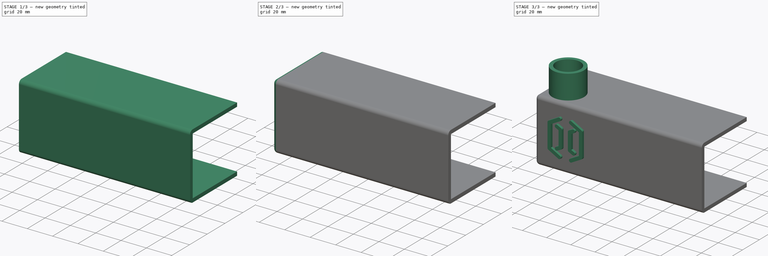
[diagram: build sequence overview — one tinted view per stage of 3, left to right]
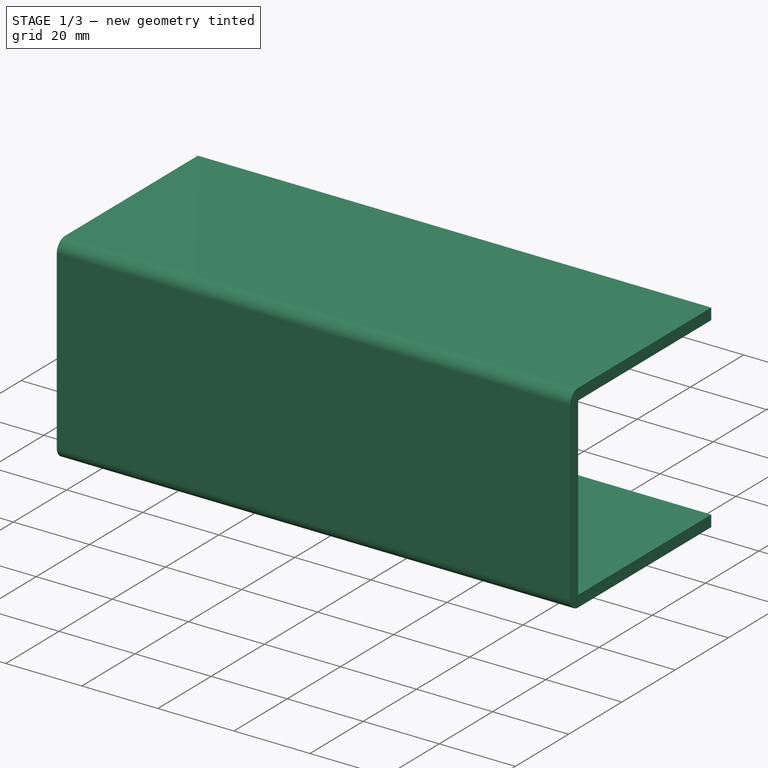
[diagram: stage 1 of 3 — iso view after this stage's code; geometry added in this stage tinted green]
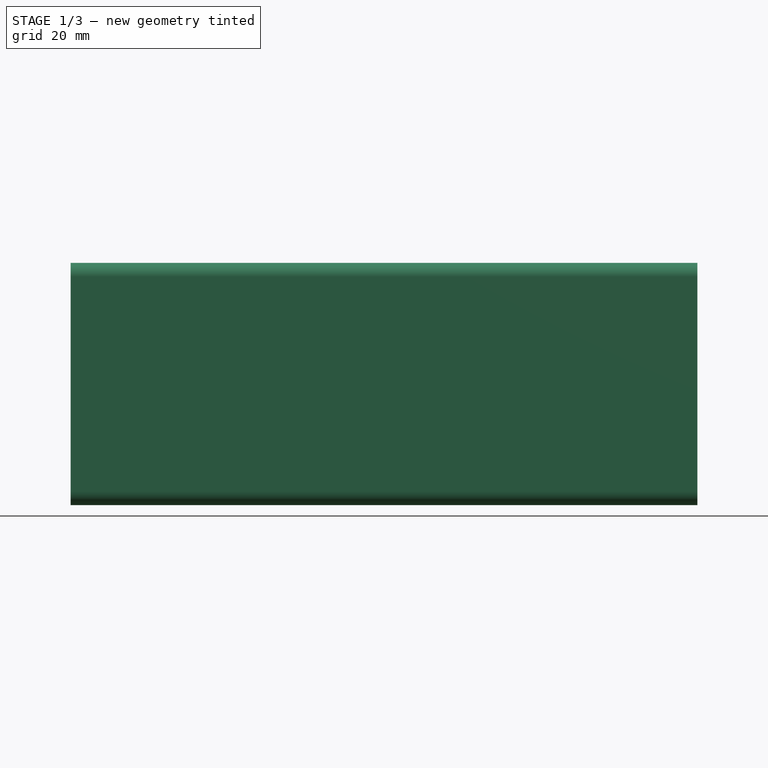
[diagram: stage 1 of 3 — front view after this stage's code; geometry added in this stage tinted green]
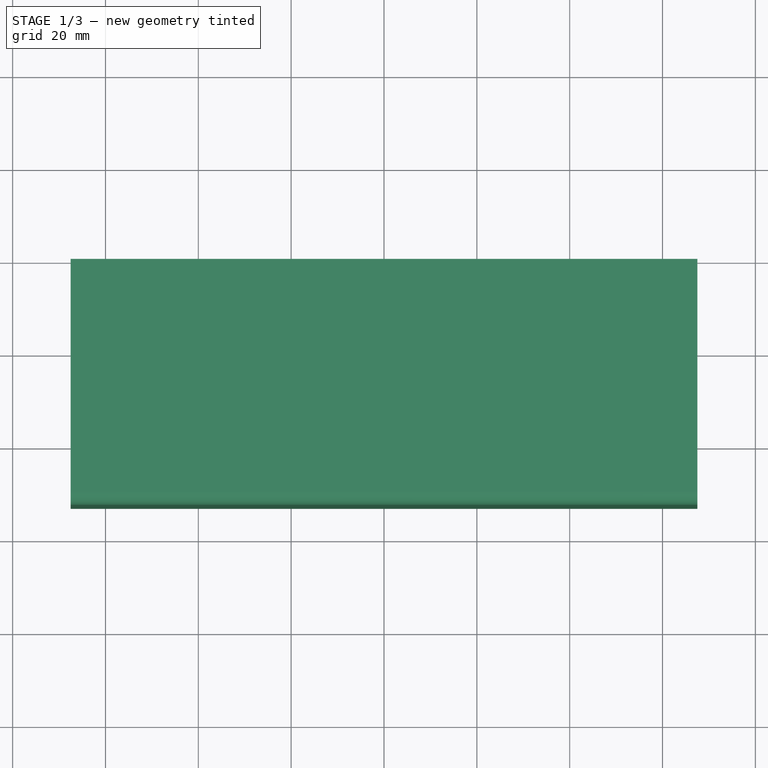
[diagram: stage 1 of 3 — top view after this stage's code; geometry added in this stage tinted green]
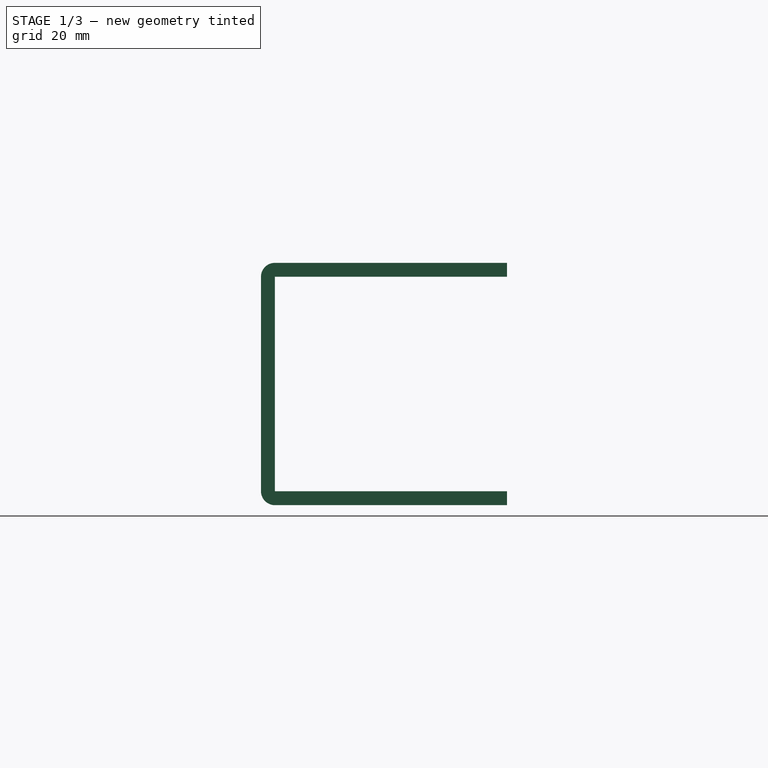
[diagram: stage 1 of 3 — right view after this stage's code; geometry added in this stage tinted green]
FCSTD DOCUMENT  (FreeCAD 1.1R38728 (Git))
Label: new version artillery sidewinder x2 front progile
License: All rights reserved
objects: Sketcher::SketchObject×4, PartDesign::Pad×4, PartDesign::Thickness×2, PartDesign::Body×2
note: 28 computed .brp shape members not serialized (recipe doc carries the construction recipe); baked Part::Feature solids carry a one-line shape summary decoded from their .brp

FEATURE [PartDesign::Body] Body  label="left section"
  AllowCompound = false
  Group = -> [Sketch,Pad,Thickness,Sketch001,Pad001,Sketch002,Pad002]
  Origin = -> Origin
  Tip = -> Pad002
FEATURE [Sketcher::SketchObject] Sketch003
  ArcFitTolerance = 1e-06
  AttachmentSupport = -> [XZ_Plane001]
  FullyConstrained = true
  MakeInternals = false
  MapMode = 5
  Placement = pos=(0,0,0) rot=(1,0,0;1.5708rad)
  expr: Constraints[8] = 405 / 3
  sketch-geometry (4):
    g0: LineSegment StartX=-67.5 StartY=23.1 StartZ=0 EndX=-67.5 EndY=-23.1 EndZ=0
    g1: LineSegment StartX=-67.5 StartY=-23.1 StartZ=0 EndX=67.5 EndY=-23.1 EndZ=0
    g2: LineSegment StartX=67.5 StartY=-23.1 StartZ=0 EndX=67.5 EndY=23.1 EndZ=0
    g3: LineSegment StartX=67.5 StartY=23.1 StartZ=0 EndX=-67.5 EndY=23.1 EndZ=0
  constraints (10):
    c: Coincident(g0,g1)
    c: Coincident(g1,g2)
    c: Coincident(g2,g3)
    c: Coincident(g3,g0)
    c: Vertical(g2)
    c: Horizontal(g1)
    c: Symmetric(g2,g0,g-2)
    c: Symmetric(g0,g0,g-1)
    c: DistanceX(g3,g3) = 135
    c: DistanceY(g0,g0) = 46.2
FEATURE [PartDesign::Pad] Pad003
  Direction = (0,-1,2e-16)
  Length = 50
  Length2 = 10
  Placement = pos=(0,0,0) rot=(1,0,0;1.5708rad)
  Profile = -> Sketch003
  ReferenceAxis = -> Sketch003 [N_Axis]
  Refine = true
  Suppressed = false
  Type = 0
FEATURE [PartDesign::Thickness] Thickness001
  Base = -> Pad003 [Face3,Face5,Face1]
  BaseFeature = -> Pad003
  Intersection = false
  Join = 0
  Mode = 0
  Refine = true
  SupportTransform = false
  Suppressed = false
  Value = 3
FEATURE [PartDesign::Body] Body001  label="mid section"
  AllowCompound = false
  Group = -> [Sketch003,Pad003,Thickness001]
  Origin = -> Origin001
  Tip = -> Thickness001
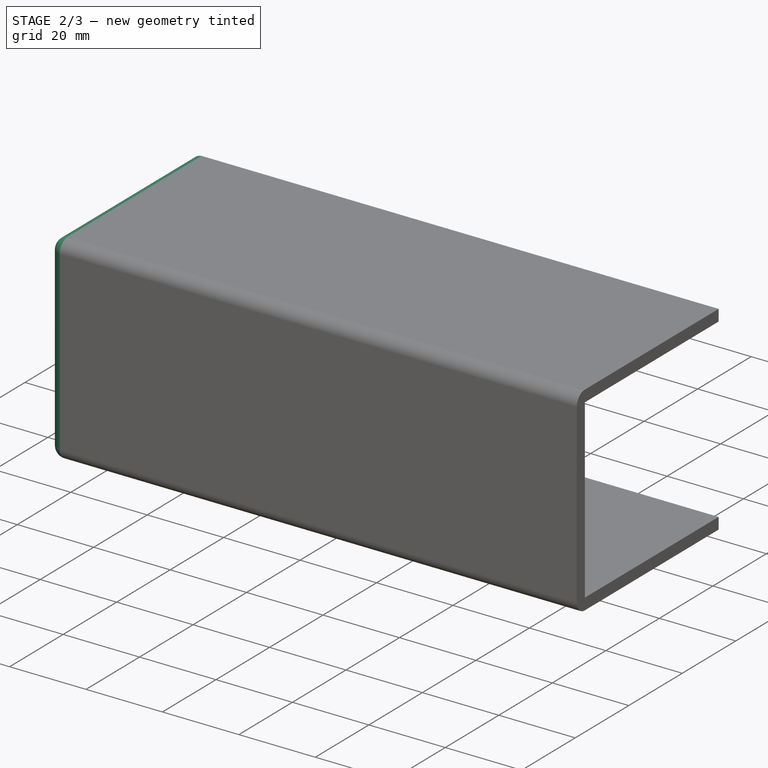
[diagram: stage 2 of 3 — iso view after this stage's code; geometry added in this stage tinted green]
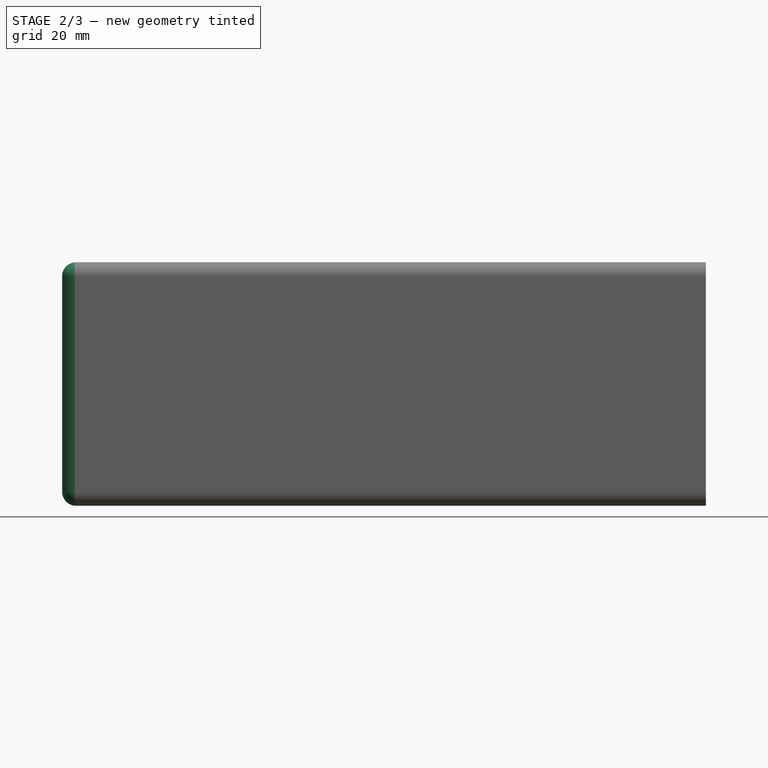
[diagram: stage 2 of 3 — front view after this stage's code; geometry added in this stage tinted green]
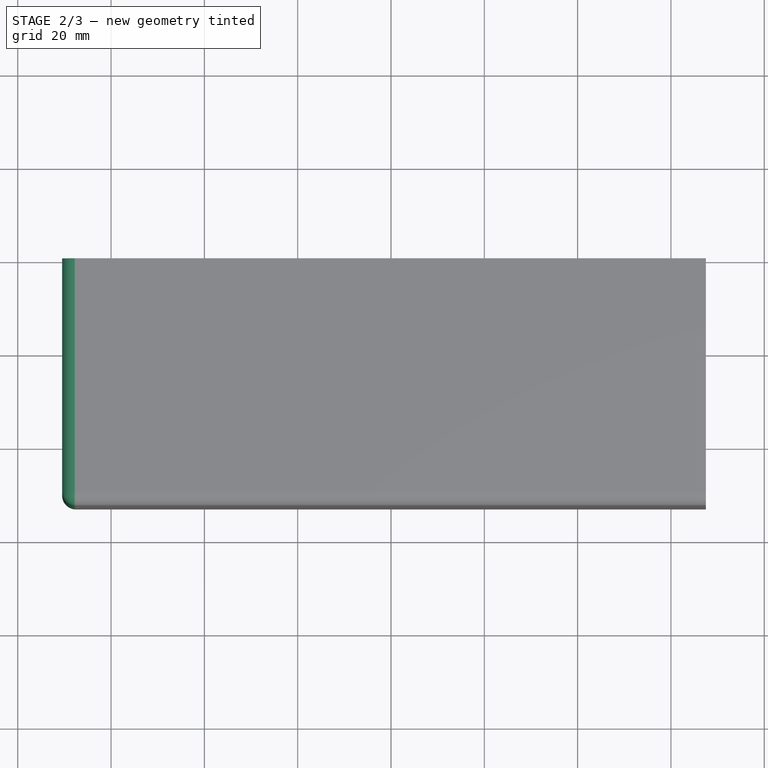
[diagram: stage 2 of 3 — top view after this stage's code; geometry added in this stage tinted green]
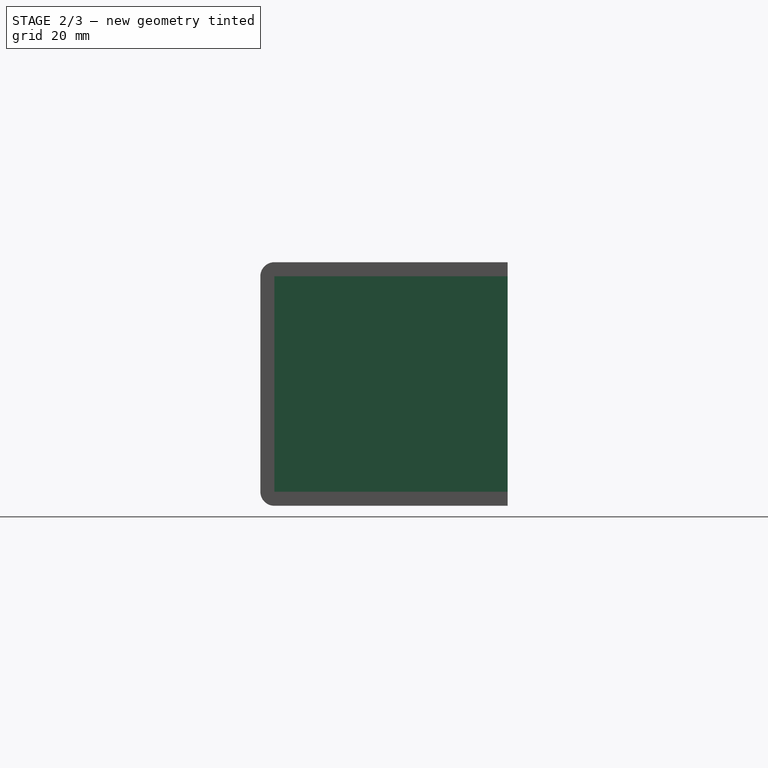
[diagram: stage 2 of 3 — right view after this stage's code; geometry added in this stage tinted green]
FEATURE [Sketcher::SketchObject] Sketch
  ArcFitTolerance = 1e-06
  AttachmentSupport = -> [XZ_Plane]
  FullyConstrained = true
  MakeInternals = false
  MapMode = 5
  Placement = pos=(0,0,0) rot=(1,0,0;1.5708rad)
  expr: Constraints[8] = 405 / 3
  sketch-geometry (4):
    g0: LineSegment StartX=-67.5 StartY=23.1 StartZ=0 EndX=-67.5 EndY=-23.1 EndZ=0
    g1: LineSegment StartX=-67.5 StartY=-23.1 StartZ=0 EndX=67.5 EndY=-23.1 EndZ=0
    g2: LineSegment StartX=67.5 StartY=-23.1 StartZ=0 EndX=67.5 EndY=23.1 EndZ=0
    g3: LineSegment StartX=67.5 StartY=23.1 StartZ=0 EndX=-67.5 EndY=23.1 EndZ=0
  constraints (10):
    c: Coincident(g0,g1)
    c: Coincident(g1,g2)
    c: Coincident(g2,g3)
    c: Coincident(g3,g0)
    c: Vertical(g2)
    c: Horizontal(g1)
    c: Symmetric(g2,g0,g-2)
    c: Symmetric(g0,g0,g-1)
    c: DistanceX(g3,g3) = 135
    c: DistanceY(g0,g0) = 46.2
FEATURE [PartDesign::Pad] Pad
  Direction = (0,-1,2e-16)
  Length = 50
  Length2 = 10
  Placement = pos=(0,0,0) rot=(1,0,0;1.5708rad)
  Profile = -> Sketch
  ReferenceAxis = -> Sketch [N_Axis]
  Refine = true
  Suppressed = false
  Type = 0
FEATURE [PartDesign::Thickness] Thickness
  Base = -> Pad [Face3,Face5]
  BaseFeature = -> Pad
  Intersection = false
  Join = 0
  Mode = 0
  Refine = true
  SupportTransform = false
  Suppressed = false
  Value = 3
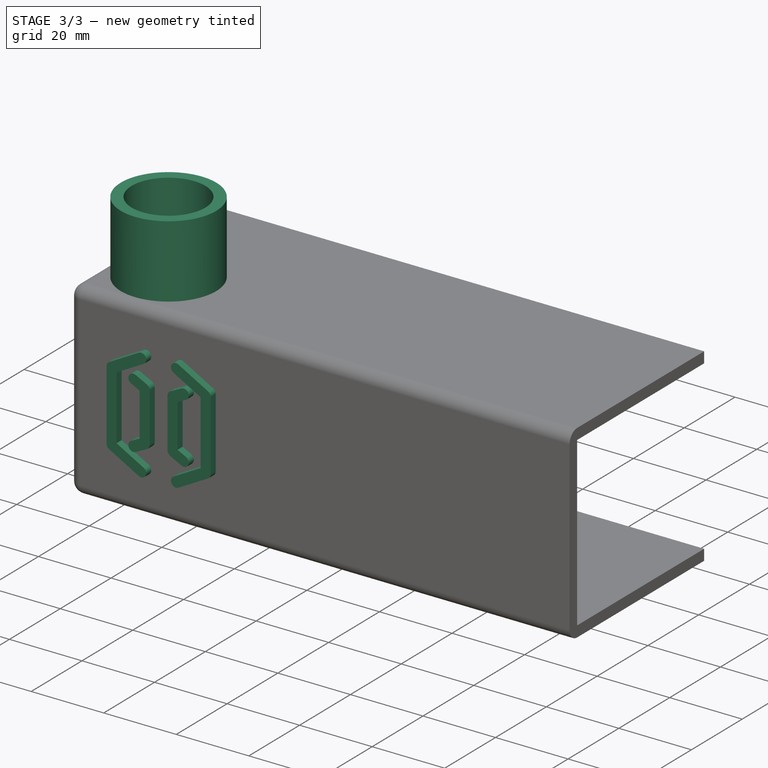
[diagram: stage 3 of 3 — iso view after this stage's code; geometry added in this stage tinted green]
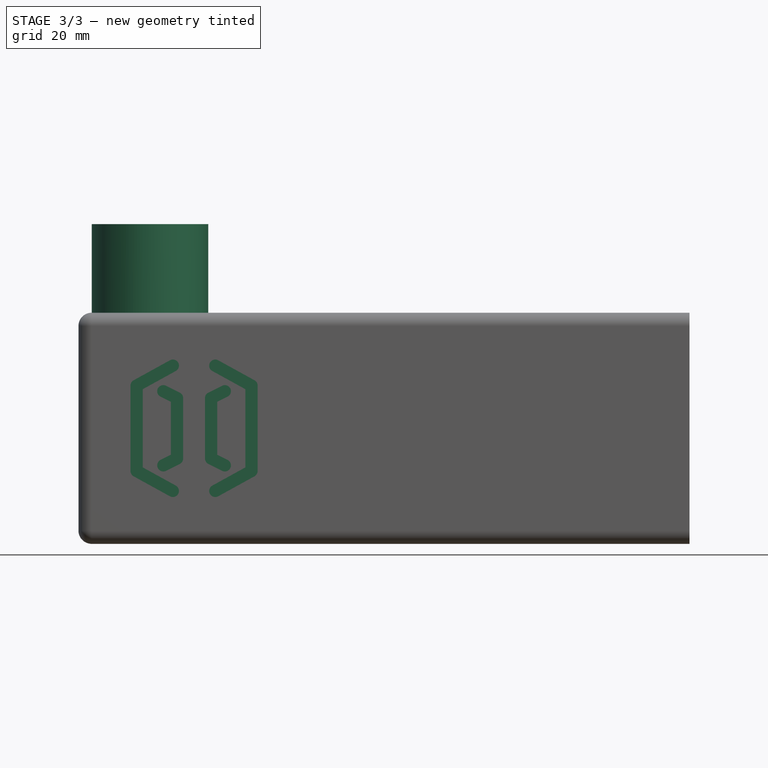
[diagram: stage 3 of 3 — front view after this stage's code; geometry added in this stage tinted green]
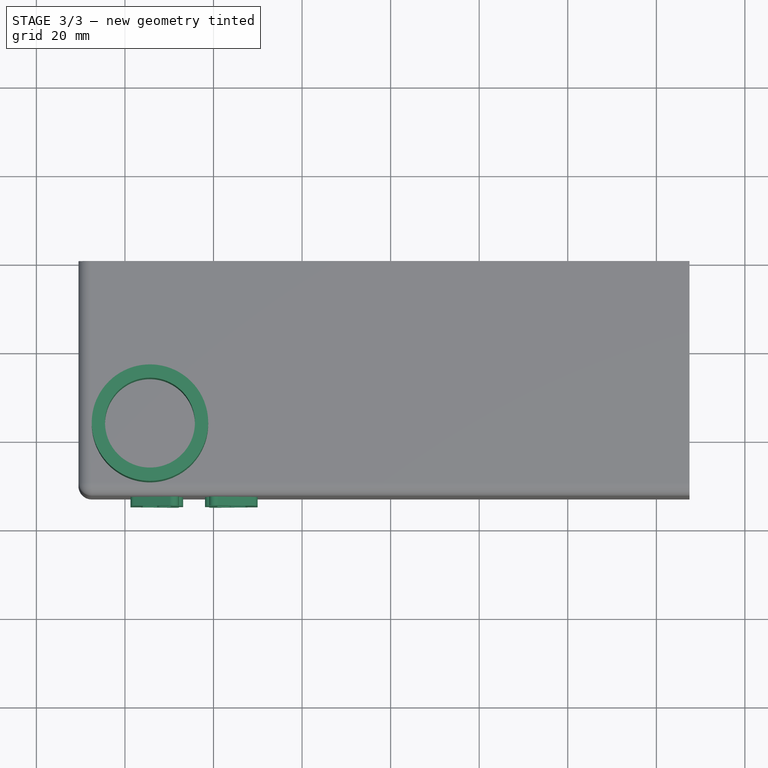
[diagram: stage 3 of 3 — top view after this stage's code; geometry added in this stage tinted green]
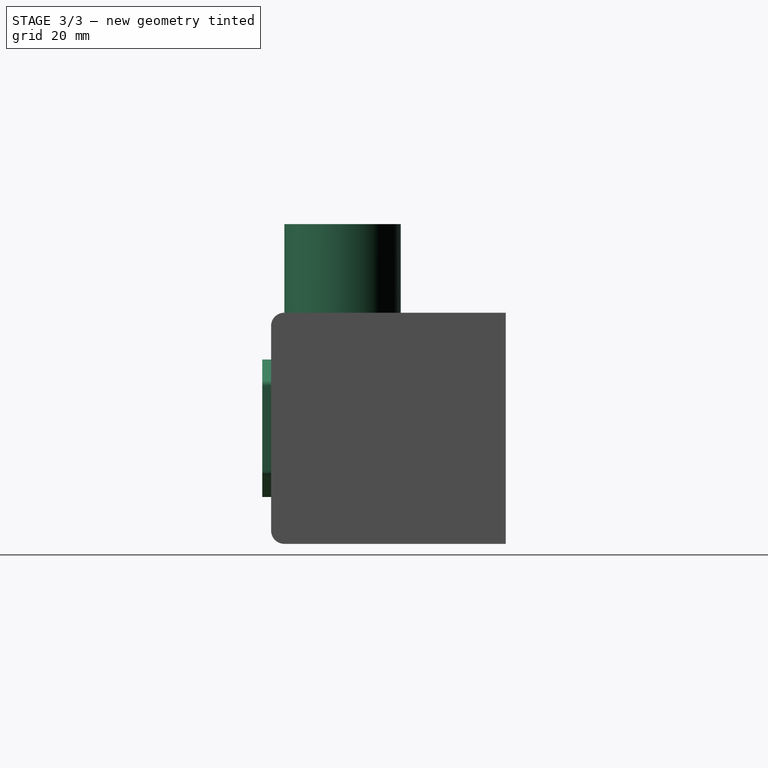
[diagram: stage 3 of 3 — right view after this stage's code; geometry added in this stage tinted green]
FEATURE [Sketcher::SketchObject] Sketch001
  ArcFitTolerance = 1e-06
  AttachmentSupport = -> [Thickness]
  ExternalGeometry = -> [Thickness]
  FullyConstrained = true
  MakeInternals = false
  MapMode = 5
  Placement = pos=(0,5.8e-15,26.1) rot=(0,0,1;0rad)
  sketch-geometry (2):
    g0: Circle CenterX=-54.35 CenterY=-36.85 CenterZ=0 NormalX=0 NormalY=0 NormalZ=1 AngleXU=0 Radius=13.15
    g1: Circle CenterX=-54.35 CenterY=-36.85 CenterZ=0 NormalX=0 NormalY=0 NormalZ=1 AngleXU=0 Radius=10.15
  constraints (5):
    c: Coincident(g1,g0)
    c: Tangent(g0,g-4)
    c: Tangent(g0,g-3)
    c: Distance(g1,g0) = 3
    c: Diameter(g1) = 20.3
FEATURE [PartDesign::Pad] Pad001
  BaseFeature = -> Thickness
  Direction = (0,0,1)
  Length = 20
  Length2 = 10
  Profile = -> Sketch001
  ReferenceAxis = -> Sketch001 [N_Axis]
  Refine = true
  Suppressed = false
  Type = 0
FEATURE [Sketcher::SketchObject] Sketch002
  ArcFitTolerance = 1e-06
  AttachmentSupport = -> [Pad001]
  ExternalGeometry = -> [Pad001]
  FullyConstrained = false
  MakeInternals = false
  MapMode = 5
  Placement = pos=(0,-53,0) rot=(1,0,0;1.5708rad)
  sketch-geometry (53):
    g0: LineSegment [constr] StartX=-44.3909 StartY=17.3794 StartZ=0 EndX=-44.3909 EndY=-12.7652 EndZ=0
    g1: LineSegment [constr] StartX=-49.1836 StartY=14.1455 StartZ=0 EndX=-57.3693 EndY=9.63609 EndZ=0
    g2: LineSegment [constr] StartX=-57.3693 StartY=9.63609 StartZ=0 EndX=-57.3693 EndY=-9.63609 EndZ=0
    g3: LineSegment [constr] StartX=-49.1836 StartY=-14.1455 StartZ=0 EndX=-57.3693 EndY=-9.63609 EndZ=0
    g4: LineSegment [constr] StartX=-48.2358 StartY=6.82149 StartZ=0 EndX=-48.2358 EndY=-6.82149 EndZ=0
    g5: LineSegment [constr] StartX=-48.2358 StartY=6.82149 StartZ=0 EndX=-51.3377 EndY=8.37247 EndZ=0
    g6: LineSegment [constr] StartX=-48.2358 StartY=-6.82149 StartZ=0 EndX=-51.3377 EndY=-8.37247 EndZ=0
    g7: ArcOfCircle CenterX=-51.3377 CenterY=-8.37247 CenterZ=0 NormalX=0 NormalY=0 NormalZ=-1 AngleXU=2.67795 Radius=1.37865 StartAngle=1.5708 EndAngle=4.71239
    g8: LineSegment StartX=-49.6144 StartY=-5.96944 StartZ=0 EndX=-51.9543 EndY=-7.13937 EndZ=0
    g9: LineSegment StartX=-49.6144 StartY=5.96944 StartZ=0 EndX=-49.6144 EndY=-5.96944 EndZ=0
    g10: LineSegment StartX=-49.6144 StartY=5.96944 StartZ=0 EndX=-51.9543 EndY=7.13937 EndZ=0
    g11: ArcOfCircle CenterX=-51.3377 CenterY=8.37247 CenterZ=0 NormalX=0 NormalY=0 NormalZ=-1 AngleXU=-2.67795 Radius=1.37865 StartAngle=1.5708 EndAngle=4.71239
    g12: LineSegment StartX=-47.6192 StartY=8.05459 StartZ=0 EndX=-50.7212 EndY=9.60557 EndZ=0
    g13: ArcOfCircle CenterX=-48.2358 CenterY=6.82149 CenterZ=0 NormalX=0 NormalY=0 NormalZ=-1 AngleXU=0.463647 Radius=1.37865 StartAngle=1.5708 EndAngle=2.67795
    g14: LineSegment StartX=-46.8571 StartY=6.82149 StartZ=0 EndX=-46.8571 EndY=-6.82149 EndZ=0
    g15: ArcOfCircle CenterX=-48.2358 CenterY=-6.82149 CenterZ=0 NormalX=0 NormalY=0 NormalZ=-1 AngleXU=1.5708 Radius=1.37865 StartAngle=1.5708 EndAngle=2.67795
    g16: LineSegment StartX=-47.6192 StartY=-8.05459 StartZ=0 EndX=-50.7212 EndY=-9.60557 EndZ=0
    g17: ArcOfCircle CenterX=-49.1836 CenterY=-14.1455 CenterZ=0 NormalX=0 NormalY=0 NormalZ=-1 AngleXU=0.503529 Radius=1.37865 StartAngle=1.5708 EndAngle=4.71239
    g18: LineSegment StartX=-49.8488 StartY=-15.3531 StartZ=0 EndX=-58.0345 EndY=-10.8436 EndZ=0
    g19: ArcOfCircle CenterX=-57.3693 CenterY=-9.63609 CenterZ=0 NormalX=0 NormalY=0 NormalZ=-1 AngleXU=-2.63806 Radius=1.37865 StartAngle=1.5708 EndAngle=2.63806
    g20: LineSegment StartX=-58.7479 StartY=9.63609 StartZ=0 EndX=-58.7479 EndY=-9.63609 EndZ=0
    g21: ArcOfCircle CenterX=-57.3693 CenterY=9.63609 CenterZ=0 NormalX=0 NormalY=0 NormalZ=-1 AngleXU=-1.5708 Radius=1.37865 StartAngle=1.5708 EndAngle=2.63806
    g22: LineSegment StartX=-49.8488 StartY=15.3531 StartZ=0 EndX=-58.0345 EndY=10.8436 EndZ=0
    g23: ArcOfCircle CenterX=-49.1836 CenterY=14.1455 CenterZ=0 NormalX=0 NormalY=0 NormalZ=-1 AngleXU=-0.503529 Radius=1.37865 StartAngle=1.5708 EndAngle=4.71239
    g24: LineSegment StartX=-48.5184 StartY=12.938 StartZ=0 EndX=-55.9907 EndY=8.82157 EndZ=0
    g25: LineSegment StartX=-55.9907 StartY=8.82157 StartZ=0 EndX=-55.9907 EndY=-8.82157 EndZ=0
    g26: LineSegment StartX=-48.5184 StartY=-12.938 StartZ=0 EndX=-55.9907 EndY=-8.82157 EndZ=0
    g27: LineSegment [constr] StartX=-39.5981 StartY=14.1455 StartZ=0 EndX=-31.4124 EndY=9.63609 EndZ=0
    g28: LineSegment [constr] StartX=-31.4124 StartY=9.63609 StartZ=0 EndX=-31.4124 EndY=-9.63609 EndZ=0
    g29: LineSegment [constr] StartX=-39.5981 StartY=-14.1455 StartZ=0 EndX=-31.4124 EndY=-9.63609 EndZ=0
    g30: LineSegment [constr] StartX=-40.546 StartY=6.82149 StartZ=0 EndX=-40.546 EndY=-6.82149 EndZ=0
    g31: LineSegment [constr] StartX=-40.546 StartY=6.82149 StartZ=0 EndX=-37.444 EndY=8.37247 EndZ=0
    g32: LineSegment [constr] StartX=-40.546 StartY=-6.82149 StartZ=0 EndX=-37.444 EndY=-8.37247 EndZ=0
    g33: ArcOfCircle CenterX=-37.444 CenterY=-8.37247 CenterZ=0 NormalX=0 NormalY=0 NormalZ=-1 AngleXU=2.67795 Radius=1.37865 StartAngle=5.63968 EndAngle=8.78128
    g34: LineSegment StartX=-39.1673 StartY=-5.96944 StartZ=0 EndX=-36.8275 EndY=-7.13937 EndZ=0
    g35: LineSegment StartX=-39.1673 StartY=5.96944 StartZ=0 EndX=-39.1673 EndY=-5.96944 EndZ=0
    g36: LineSegment StartX=-39.1673 StartY=5.96944 StartZ=0 EndX=-36.8275 EndY=7.13937 EndZ=0
    g37: ArcOfCircle CenterX=-37.444 CenterY=8.37247 CenterZ=0 NormalX=0 NormalY=0 NormalZ=-1 AngleXU=-2.67795 Radius=1.37865 StartAngle=3.78509 EndAngle=6.92669
    g38: LineSegment StartX=-41.1625 StartY=8.05459 StartZ=0 EndX=-38.0606 EndY=9.60557 EndZ=0
    g39: ArcOfCircle CenterX=-40.546 CenterY=6.82149 CenterZ=0 NormalX=0 NormalY=0 NormalZ=-1 AngleXU=0.463647 Radius=1.37865 StartAngle=5.81954 EndAngle=6.92669
    g40: LineSegment StartX=-41.9246 StartY=6.82149 StartZ=0 EndX=-41.9246 EndY=-6.82149 EndZ=0
    g41: ArcOfCircle CenterX=-40.546 CenterY=-6.82149 CenterZ=0 NormalX=0 NormalY=0 NormalZ=-1 AngleXU=1.5708 Radius=1.37865 StartAngle=3.60524 EndAngle=4.71239
    g42: LineSegment StartX=-41.1625 StartY=-8.05459 StartZ=0 EndX=-38.0606 EndY=-9.60557 EndZ=0
    g43: ArcOfCircle CenterX=-39.5981 CenterY=-14.1455 CenterZ=0 NormalX=0 NormalY=0 NormalZ=-1 AngleXU=0.503529 Radius=1.37865 StartAngle=3.70533 EndAngle=6.84692
    g44: LineSegment StartX=-38.9329 StartY=-15.3531 StartZ=0 EndX=-30.7472 EndY=-10.8436 EndZ=0
    g45: ArcOfCircle CenterX=-31.4124 CenterY=-9.63609 CenterZ=0 NormalX=0 NormalY=0 NormalZ=-1 AngleXU=-2.63806 Radius=1.37865 StartAngle=5.77966 EndAngle=6.84692
    g46: LineSegment StartX=-30.0338 StartY=9.63609 StartZ=0 EndX=-30.0338 EndY=-9.63609 EndZ=0
    g47: ArcOfCircle CenterX=-31.4124 CenterY=9.63609 CenterZ=0 NormalX=0 NormalY=0 NormalZ=-1 AngleXU=-1.5708 Radius=1.37865 StartAngle=3.64512 EndAngle=4.71239
    g48: LineSegment StartX=-38.9329 StartY=15.3531 StartZ=0 EndX=-30.7472 EndY=10.8436 EndZ=0
    g49: ArcOfCircle CenterX=-39.5981 CenterY=14.1455 CenterZ=0 NormalX=0 NormalY=0 NormalZ=-1 AngleXU=-0.503529 Radius=1.37865 StartAngle=5.71945 EndAngle=8.86104
    g50: LineSegment StartX=-40.2634 StartY=12.938 StartZ=0 EndX=-32.7911 EndY=8.82157 EndZ=0
    g51: LineSegment StartX=-32.7911 StartY=8.82157 StartZ=0 EndX=-32.7911 EndY=-8.82157 EndZ=0
    g52: LineSegment StartX=-40.2634 StartY=-12.938 StartZ=0 EndX=-32.7911 EndY=-8.82157 EndZ=0
  constraints (53):
    c: Vertical(g0)
    c: Coincident(g2,g1)
    c: Symmetric(g2,g2,g-1)
    c: Symmetric(g3,g1,g-1)
    c: Coincident(g5,g4)
    c: Symmetric(g4,g4,g-1)
    c: Coincident(g4,g6)
    c: Symmetric(g5,g6,g-1)
    c: Coincident(g2,g3)
    c: Tangent(g7,g8) = -1.5708
    c: Tangent(g7,g16) = 1.5708
    c: Coincident(g8,g9)
    c: Coincident(g9,g10)
    c: Tangent(g10,g11) = 1.5708
    c: Tangent(g11,g12) = -1.5708
    c: Tangent(g12,g13) = -1.5708
    c: Tangent(g13,g14) = 1.5708
    c: Tangent(g14,g15) = 1.5708
    c: Tangent(g15,g16) = 1.5708
    c: Tangent(g17,g18) = 1.5708
    c: Tangent(g17,g26) = -1.5708
    c: Tangent(g18,g19) = 1.5708
    c: Tangent(g19,g20) = -1.5708
    c: Tangent(g20,g21) = -1.5708
    c: Tangent(g21,g22) = -1.5708
    c: Tangent(g22,g23) = -1.5708
    c: Tangent(g23,g24) = 1.5708
    c: Coincident(g24,g25)
    c: Coincident(g25,g26)
    c: Coincident(g28,g27)
    c: Coincident(g31,g30)
    c: Coincident(g30,g32)
    c: Coincident(g28,g29)
    c: Tangent(g33,g34) = 1.5708
    c: Tangent(g33,g42) = -1.5708
    c: Coincident(g34,g35)
    c: Coincident(g35,g36)
    c: Tangent(g36,g37) = -1.5708
    c: Tangent(g37,g38) = 1.5708
    c: Tangent(g38,g39) = 1.5708
    c: Tangent(g39,g40) = -1.5708
    c: Tangent(g40,g41) = -1.5708
    c: Tangent(g41,g42) = -1.5708
    c: Tangent(g43,g44) = -1.5708
    c: Tangent(g43,g52) = 1.5708
    c: Tangent(g44,g45) = -1.5708
    c: Tangent(g45,g46) = 1.5708
    c: Tangent(g46,g47) = 1.5708
    c: Tangent(g47,g48) = 1.5708
    c: Tangent(g48,g49) = 1.5708
    c: Tangent(g49,g50) = -1.5708
    c: Coincident(g50,g51)
    c: Coincident(g51,g52)
FEATURE [PartDesign::Pad] Pad002
  BaseFeature = -> Pad001
  Direction = (0,-1,2e-16)
  Length = 2
  Length2 = 10
  Profile = -> Sketch002
  ReferenceAxis = -> Sketch002 [N_Axis]
  Refine = true
  Suppressed = false
  Type = 0
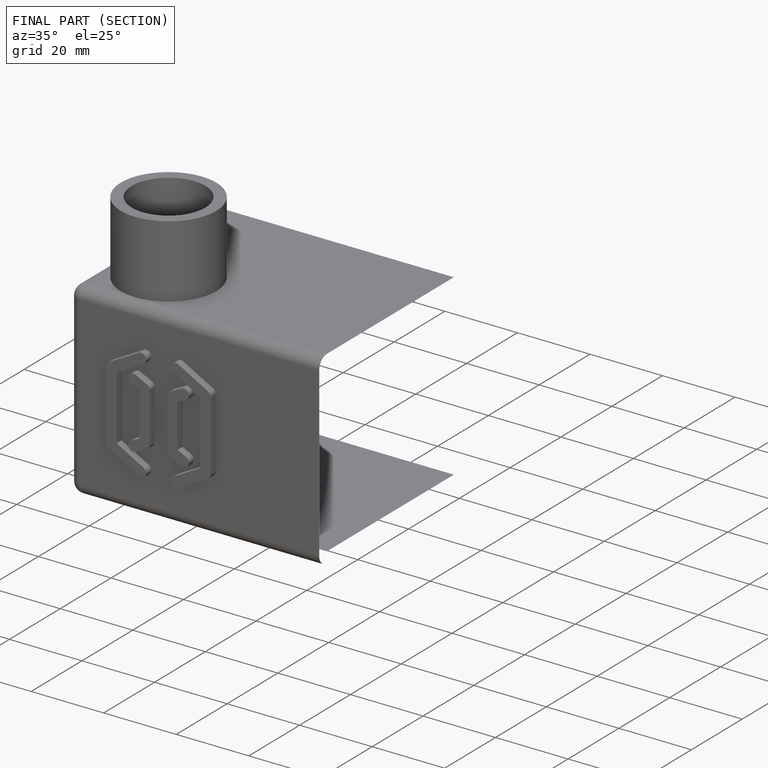
[diagram: finished part — half-section view (interior)]
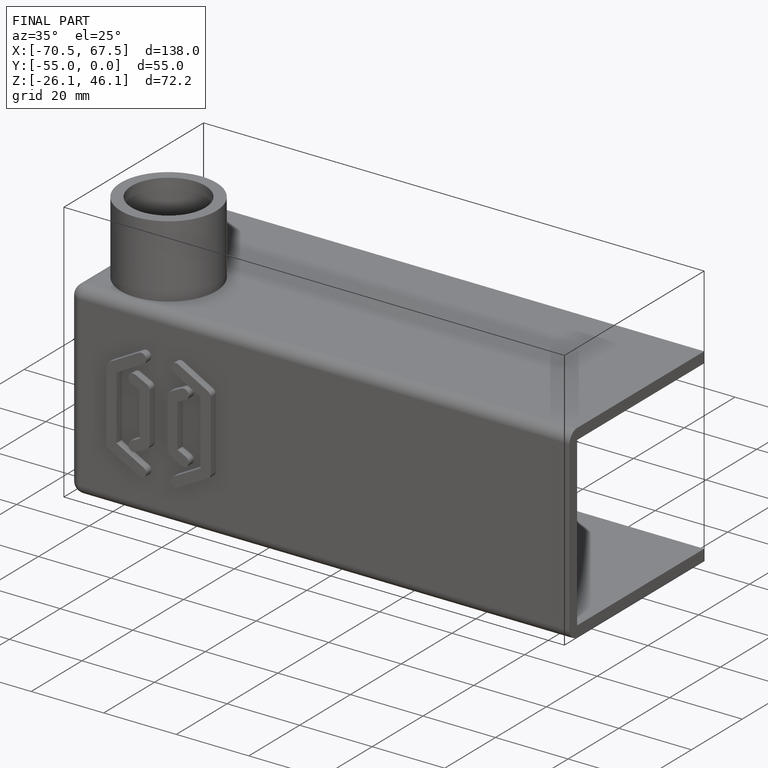
[diagram: finished part — iso view with bounding-box wireframe]
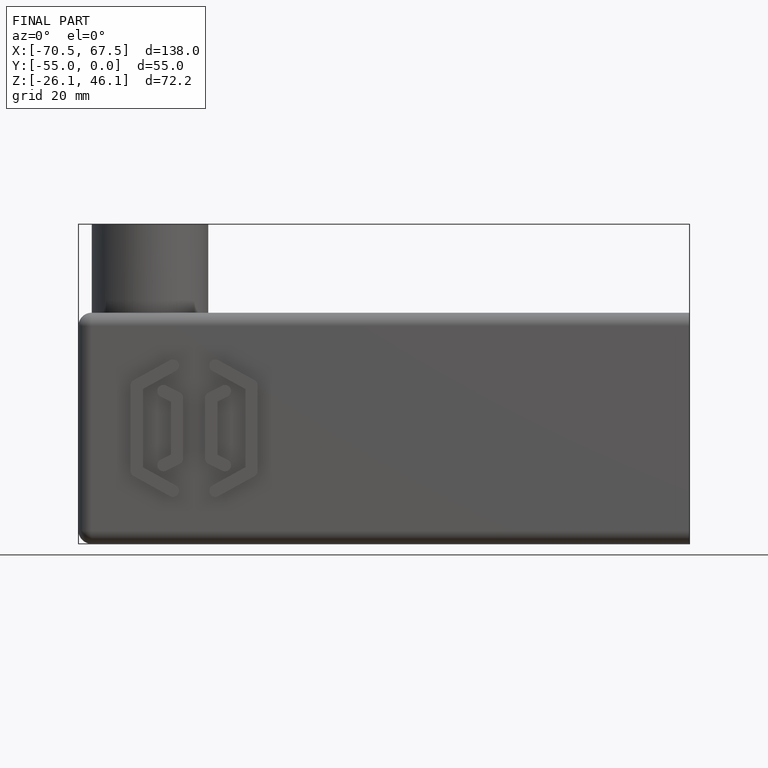
[diagram: finished part — front view with bounding-box wireframe]
